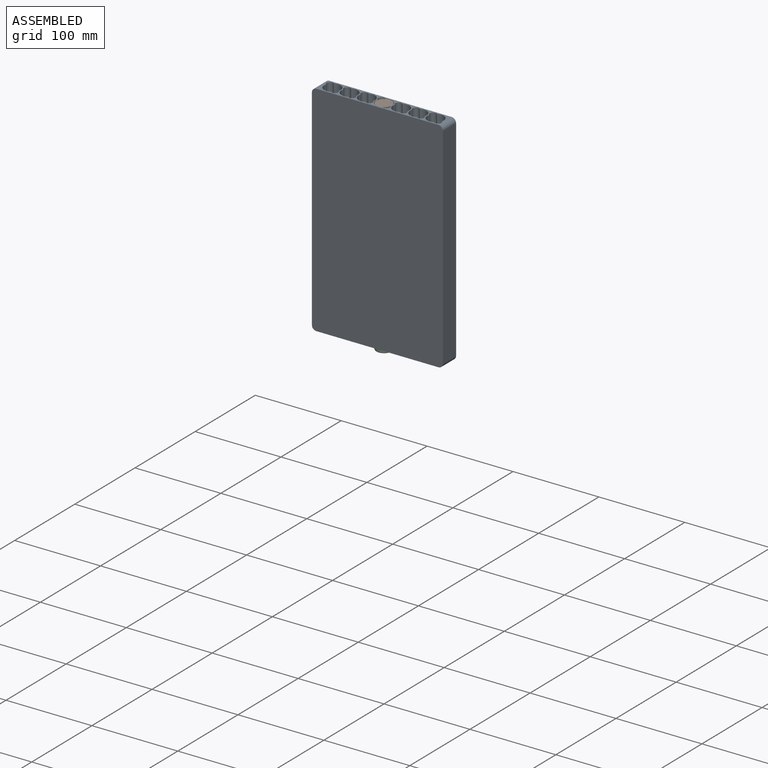
[diagram: assembled view]
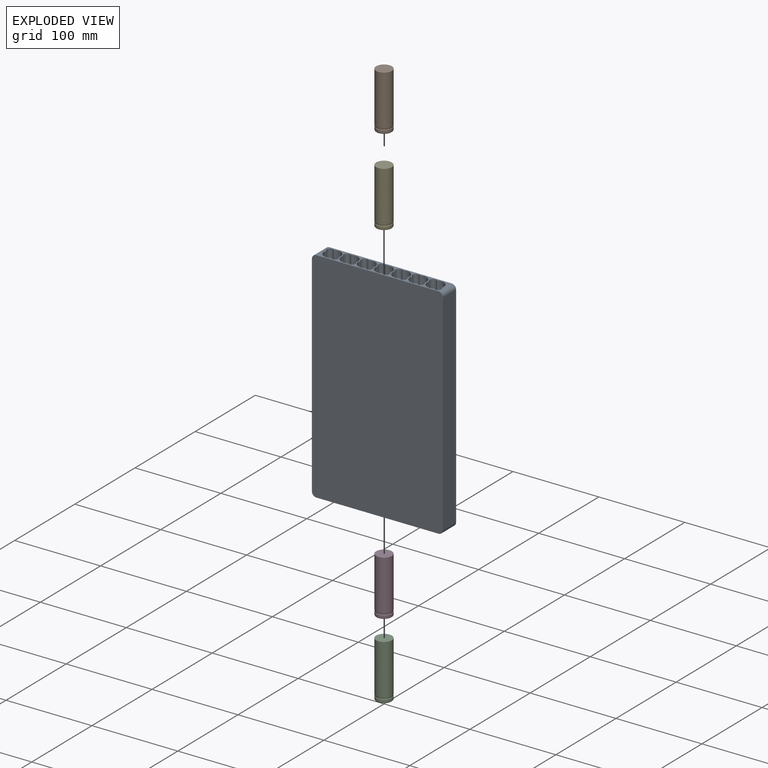
[diagram: exploded view]
GUIDED TOUR — MATED ASSEMBLY (Onshape document 65e185174f13fe396940db51, AutoMate assembly 65e185174f13fe396940db51_8ce6baf0ba9446fbc333db1d_f1229b0c8670d90a0596e12f_default)

This assembly has 5 components, labeled P0..P4 below (a component is one placed occurrence of a part; the same part can appear more than once), held together by 4 mates. A mate is a constraint between two components; its type names the relative motion it leaves free:
  FASTENED — locks the two components together rigidly (no relative motion).
Axis/direction vectors are unit vectors and 'through' points are millimeter coordinates, both in the assembly's world frame.

MATES
  1. FASTENED "Fastened 6": P2 <-> P3, direction (0.000, 0.000, -1.000) through (0.00, 0.00, 60.13) mm
  2. FASTENED "Fastened 1": P1 <-> P4, direction (0.000, 0.000, -1.000) through (0.00, 0.00, 189.98) mm
  3. FASTENED "Fastened 7": P1 <-> P0, direction (0.000, 0.000, 1.000) through (0.00, 0.00, 254.98) mm
  4. FASTENED "Fastened 3": P3 <-> P4, direction (0.000, 0.000, 1.000) through (0.00, 0.00, 124.98) mm

ASSEMBLY ORDER
  1. P4 — the base component [order verified]
  2. P0 [order verified]
  3. P3 [order verified]
  4. P1 [order verified]
  5. P2 [order verified]
Order-tag legend:
  [order verified] — this step's position reverses a verified removal order: the component was checked to insert without passing through the ones already placed.

Of the 5 components, 1 carries the full construction recipe — the FeatureScript program that regenerates the part's solid from scratch; the rest are supplied as boundary geometry only.
Each toured component is shown spotlighted twice — in the assembled view, then in the exploded view, where a leader line traces a displaced component back to its assembled socket (saturated green if recipe-attached, orange if geometry-only; every other component desaturated gray) — followed by its recipe or geometry summary and the mates that hold it.
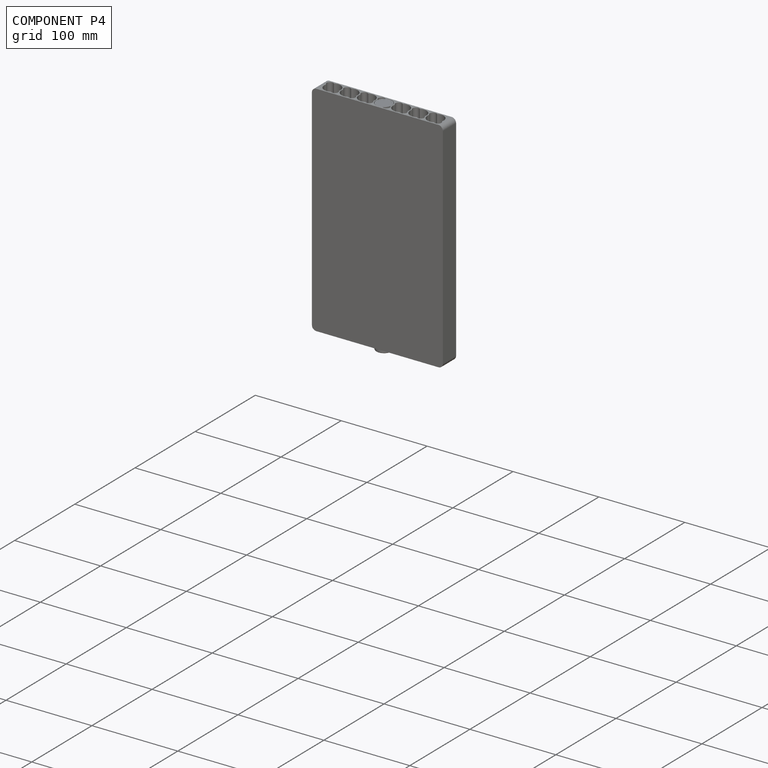
[diagram: component P4 — assembled]
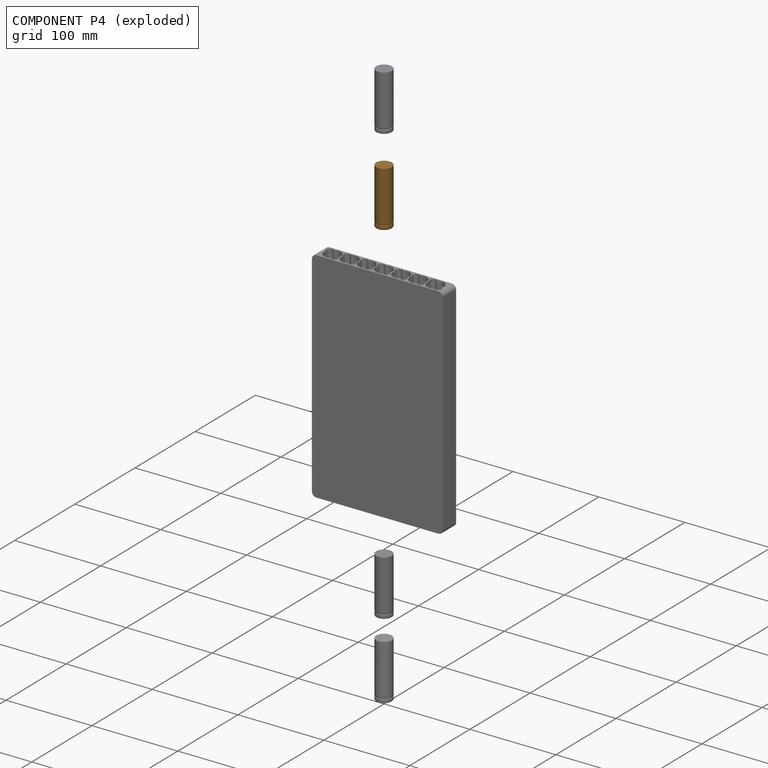
[diagram: component P4 — exploded]
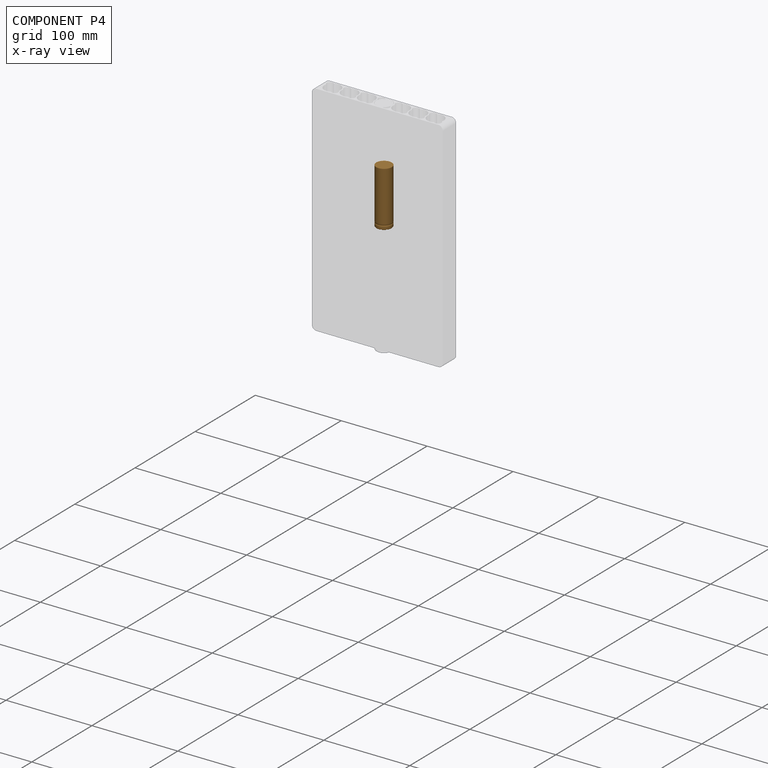
[diagram: component P4 — x-ray view]
COMPONENT P4 — geometry summary (no construction recipe available for this part):
  bounding box: 65.0 x 20.4 x 20.4 mm
  B-rep topology: 1 solid, 15 faces, 52 edges
  volume: 17202 mm^3 (63% of its bounding box)
  symmetry: revolution-symmetric about the x axis through its bounding-box center; mirror-symmetric across its y mid-plane, z mid-plane
Held by: FASTENED mate "Fastened 1" to P1; FASTENED mate "Fastened 3" to P3.
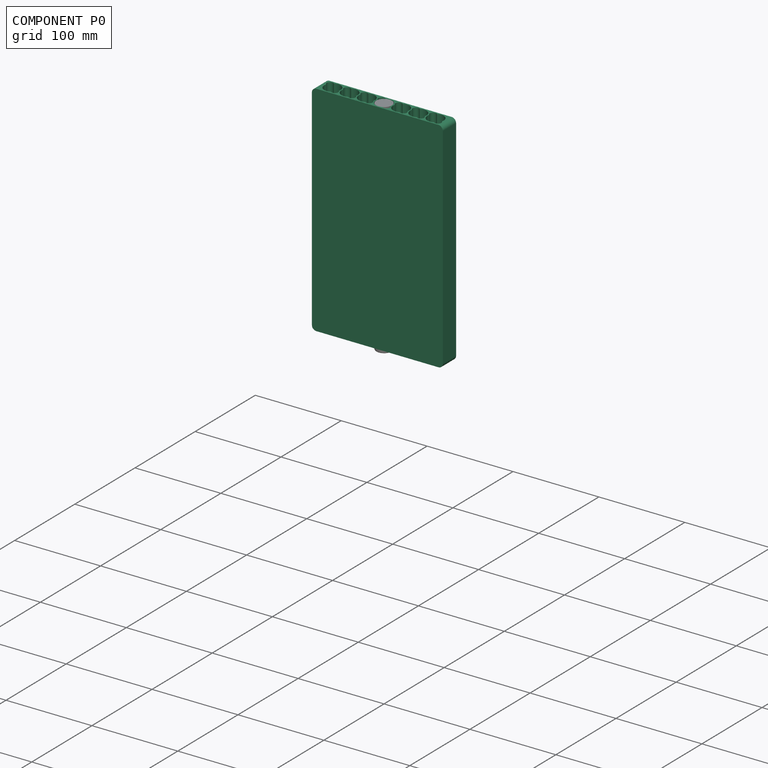
[diagram: component P0 — assembled]
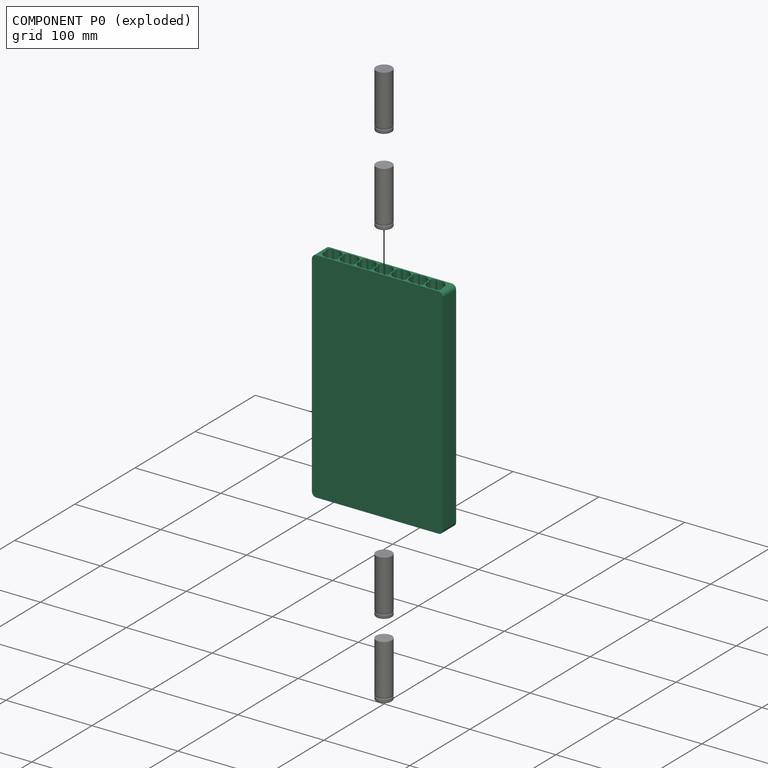
[diagram: component P0 — exploded]
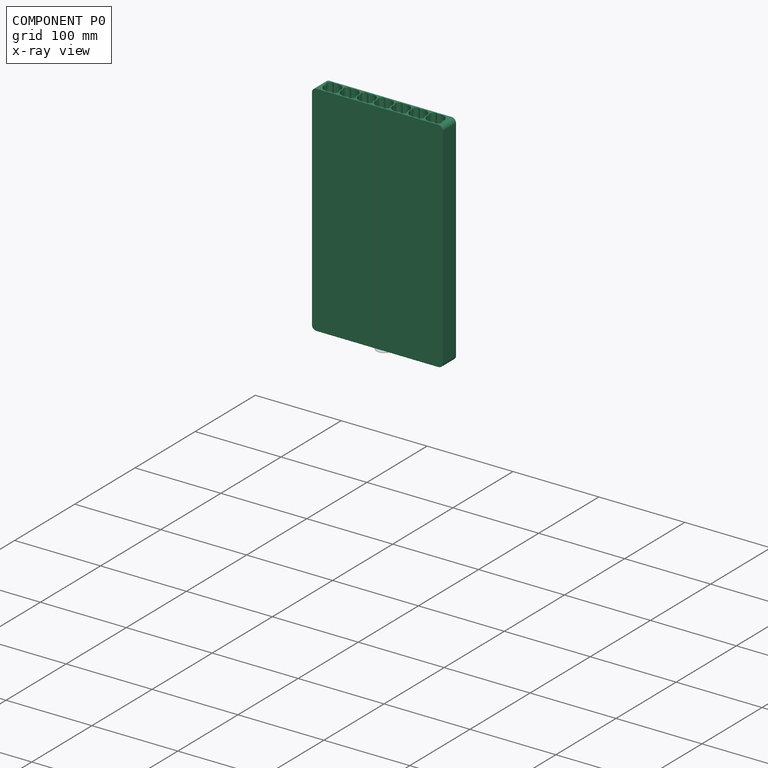
[diagram: component P0 — x-ray view]
COMPONENT P0 — recipe-attached (CADFS 00773955, mesh-verified: the recipe's output STEP matches this component's geometry to below the mesh-comparison resolution (tessellation chordal tolerance ~0.447 mm)).
Held by: FASTENED mate "Fastened 7" to P1.
Construction recipe (FeatureScript — the CAD program that rebuilds this solid; sketch coordinates are in the units given by the * unit suffixes, e.g. mm):

FeatureScript 1511;
import(path : "onshape/std/geometry.fs", version : "1511.0");
import(path : "onshape/std/common.fs", version : "1511.0");
const mm = millimeter;
const VERTEX = EntityType.VERTEX;
const EDGE = EntityType.EDGE;
const FACE = EntityType.FACE;
const BODY = EntityType.BODY;
function v(x, y){return vector(x, y);}
function OD(order){return orderDisambiguation(order);}
function OSD(set){return originalSetDisambiguation(set);}
function TD(topology){return topologyDisambiguation(topology);}
function TDD(query){return trueDependencyDisambiguation(query);}
function sQuery(a, b, c) {return sketchEntityQuery(a, b, c);}

annotation { "Feature Type Name" : "Feature", "Feature Type Description" : "" }
export const myFeature = defineFeature(function(context is Context, id is Id, definition is map)
    precondition{}
    {
        {
            var Q0;
            Q0=qCreatedBy(makeId("Top.planeOp"),FACE);
            var sketch = newSketch(context, id + "F0", { "sketchPlane" : qUnion([Q0])});
            skLineSegment(sketch, "E0.bottom", {"start": v(76.2, 11) * mm, "end": v(-76.2, 11) * mm});
            skLineSegment(sketch, "E0.top", {"start": v(76.2, -11) * mm, "end": v(-76.2, -11) * mm});
            skLineSegment(sketch, "E0.left", {"start": v(76.2, 11) * mm, "end": v(76.2, -11) * mm});
            skLineSegment(sketch, "E0.right", {"start": v(-76.2, 11) * mm, "end": v(-76.2, -11) * mm});
            skPoint(sketch, "E0.middle", {"position": v(0, 0) * mm});
            skArc(sketch, "E1", {"start": v(-9.13, 2.62) * mm, "mid": v(-6.06, -7.32) * mm, "end": v(4.28, -8.48) * mm});
            skPoint(sketch, "E2.start.orphan", {"position": v(0, -9.5) * mm});
            skArc(sketch, "E3", {"start": v(4.28, -8.48) * mm, "mid": v(9.8, -8.12) * mm, "end": v(9.13, -2.62) * mm});
            skArc(sketch, "E4.1.0", {"start": v(-4.28, 8.48) * mm, "mid": v(-9.8, 8.12) * mm, "end": v(-9.13, 2.62) * mm});
            skArc(sketch, "E5.trimOffspring", {"start": v(9.13, -2.62) * mm, "mid": v(6.06, 7.32) * mm, "end": v(-4.28, 8.48) * mm});
            skArc(sketch, "E6.1.0.0", {"start": v(29.13, -2.62) * mm, "mid": v(26.06, 7.32) * mm, "end": v(15.72, 8.48) * mm});
            skArc(sketch, "E6.1.0.1", {"start": v(10.87, 2.62) * mm, "mid": v(13.94, -7.32) * mm, "end": v(24.28, -8.48) * mm});
            skArc(sketch, "E6.1.0.2", {"start": v(15.72, 8.48) * mm, "mid": v(10.2, 8.12) * mm, "end": v(10.87, 2.62) * mm});
            skArc(sketch, "E6.1.0.3", {"start": v(24.28, -8.48) * mm, "mid": v(29.8, -8.12) * mm, "end": v(29.13, -2.62) * mm});
            skArc(sketch, "E6.2.0.0", {"start": v(49.13, -2.62) * mm, "mid": v(46.06, 7.32) * mm, "end": v(35.72, 8.48) * mm});
            skArc(sketch, "E6.2.0.1", {"start": v(30.87, 2.62) * mm, "mid": v(33.94, -7.32) * mm, "end": v(44.28, -8.48) * mm});
            skArc(sketch, "E6.2.0.2", {"start": v(35.72, 8.48) * mm, "mid": v(30.2, 8.12) * mm, "end": v(30.87, 2.62) * mm});
            skArc(sketch, "E6.2.0.3", {"start": v(44.28, -8.48) * mm, "mid": v(49.8, -8.12) * mm, "end": v(49.13, -2.62) * mm});
            skArc(sketch, "E6.3.0.0", {"start": v(69.13, -2.62) * mm, "mid": v(66.06, 7.32) * mm, "end": v(55.72, 8.48) * mm});
            skArc(sketch, "E6.3.0.1", {"start": v(50.87, 2.62) * mm, "mid": v(53.94, -7.32) * mm, "end": v(64.28, -8.48) * mm});
            skArc(sketch, "E6.3.0.2", {"start": v(55.72, 8.48) * mm, "mid": v(50.2, 8.12) * mm, "end": v(50.87, 2.62) * mm});
            skArc(sketch, "E6.3.0.3", {"start": v(64.28, -8.48) * mm, "mid": v(69.8, -8.12) * mm, "end": v(69.13, -2.62) * mm});
            skLineSegment(sketch, "E6.direction1", {"start": v(-9.13, 2.62) * mm, "end": v(10.87, 2.62) * mm, "construction": true});
            skArc(sketch, "E7.1.0.0", {"start": v(-10.87, -2.62) * mm, "mid": v(-13.94, 7.32) * mm, "end": v(-24.28, 8.48) * mm});
            skArc(sketch, "E7.1.0.1", {"start": v(-29.13, 2.62) * mm, "mid": v(-26.06, -7.32) * mm, "end": v(-15.72, -8.48) * mm});
            skArc(sketch, "E7.1.0.2", {"start": v(-24.28, 8.48) * mm, "mid": v(-29.8, 8.12) * mm, "end": v(-29.13, 2.62) * mm});
            skArc(sketch, "E7.1.0.3", {"start": v(-15.72, -8.48) * mm, "mid": v(-10.2, -8.12) * mm, "end": v(-10.87, -2.62) * mm});
            skArc(sketch, "E7.2.0.0", {"start": v(-30.87, -2.62) * mm, "mid": v(-33.94, 7.32) * mm, "end": v(-44.28, 8.48) * mm});
            skArc(sketch, "E7.2.0.1", {"start": v(-49.13, 2.62) * mm, "mid": v(-46.06, -7.32) * mm, "end": v(-35.72, -8.48) * mm});
            skArc(sketch, "E7.2.0.2", {"start": v(-44.28, 8.48) * mm, "mid": v(-49.8, 8.12) * mm, "end": v(-49.13, 2.62) * mm});
            skArc(sketch, "E7.2.0.3", {"start": v(-35.72, -8.48) * mm, "mid": v(-30.2, -8.12) * mm, "end": v(-30.87, -2.62) * mm});
            skArc(sketch, "E7.3.0.0", {"start": v(-50.87, -2.62) * mm, "mid": v(-53.94, 7.32) * mm, "end": v(-64.28, 8.48) * mm});
            skArc(sketch, "E7.3.0.1", {"start": v(-69.13, 2.62) * mm, "mid": v(-66.06, -7.32) * mm, "end": v(-55.72, -8.48) * mm});
            skArc(sketch, "E7.3.0.2", {"start": v(-64.28, 8.48) * mm, "mid": v(-69.8, 8.12) * mm, "end": v(-69.13, 2.62) * mm});
            skArc(sketch, "E7.3.0.3", {"start": v(-55.72, -8.48) * mm, "mid": v(-50.2, -8.12) * mm, "end": v(-50.87, -2.62) * mm});
            skLineSegment(sketch, "E7.direction1", {"start": v(-9.13, 2.62) * mm, "end": v(-29.13, 2.62) * mm, "construction": true});
            skSolve(sketch);
        }
        {
            var Q0;
            Q0 = qSketchRegion(id + "F0", true);
            extrude(context, id + "F1", {"entities" : qUnion([Q0]), "depth" : 254.98 * mm, "offsetDistance" : 25.4 * mm});
        }
        {
            var Q0;
            Q0=makeQuery(id+"F1.opExtrude","CAP_EDGE",EDGE,{"disambiguationData":[OSD([sQuery(id+"F0.wireOp",EDGE,"E0.left")])],"isStart":false});
            var Q1;
            Q1=makeQuery(id+"F1.opExtrude","CAP_EDGE",EDGE,{"disambiguationData":[OSD([sQuery(id+"F0.wireOp",EDGE,"E0.right")])],"isStart":false});
            var Q2;
            Q2=makeQuery(id+"F1.opExtrude","CAP_EDGE",EDGE,{"disambiguationData":[OSD([sQuery(id+"F0.wireOp",EDGE,"E0.left")])],"isStart":true});
            var Q3;
            Q3=makeQuery(id+"F1.opExtrude","CAP_EDGE",EDGE,{"disambiguationData":[OSD([sQuery(id+"F0.wireOp",EDGE,"E0.right")])],"isStart":true});
            fillet(context, id + "F2", {"entities" : qUnion([Q0, Q1, Q2, Q3]), "radius" : 5.08 * mm, "tangentPropagation" : true, "allowEdgeOverflow" : false});
        }
    });
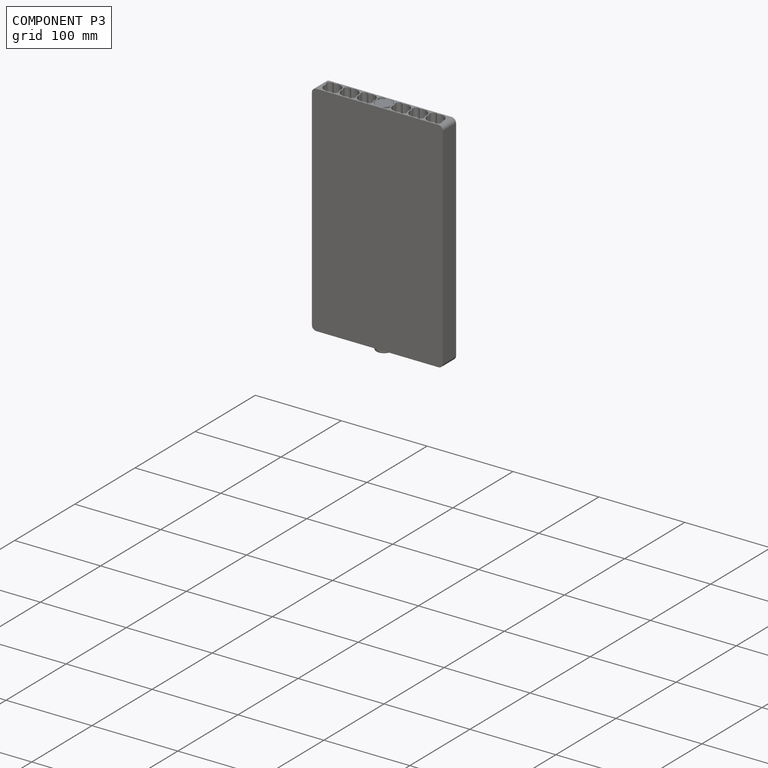
[diagram: component P3 — assembled]
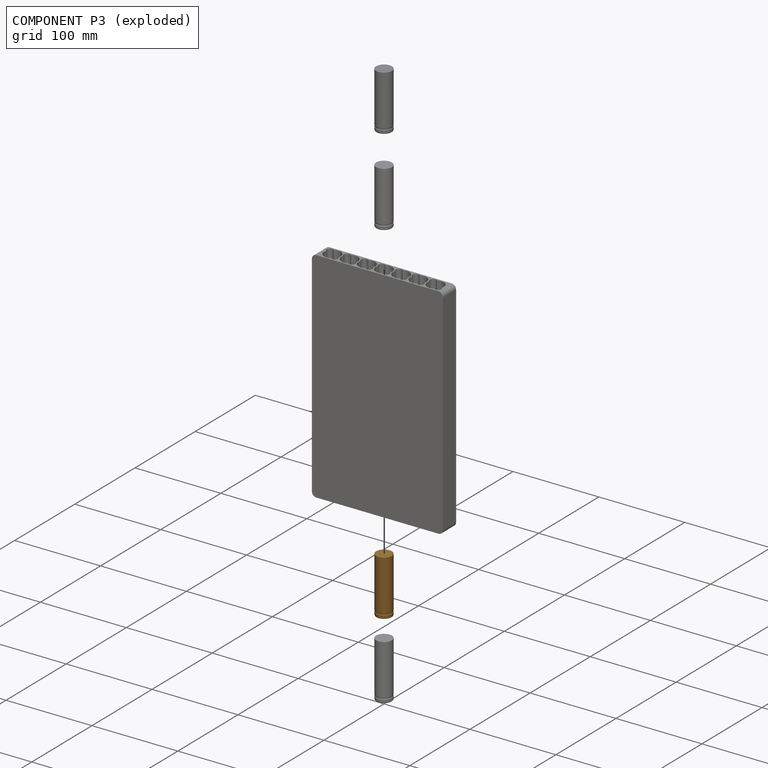
[diagram: component P3 — exploded]
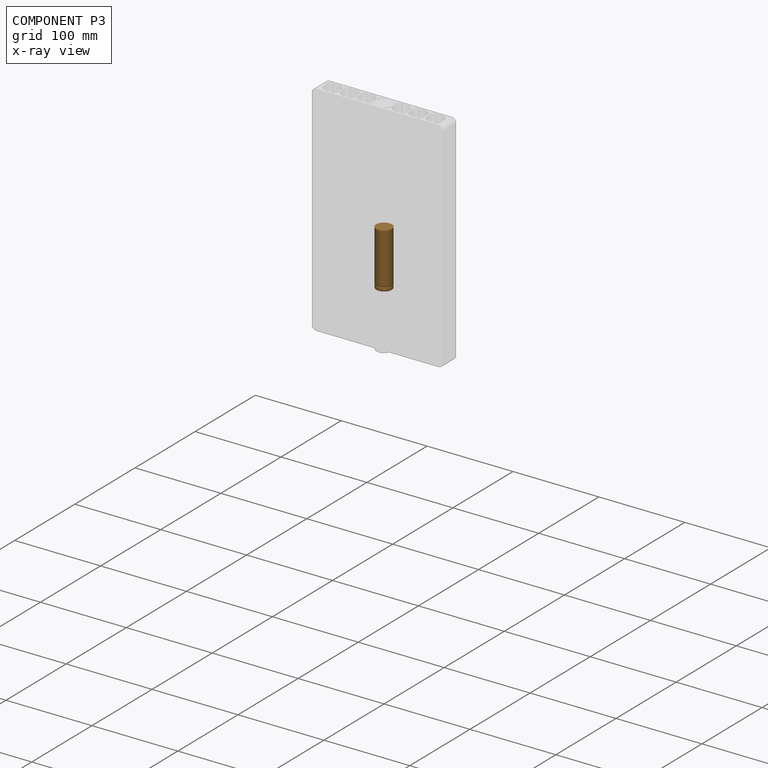
[diagram: component P3 — x-ray view]
COMPONENT P3 — geometry summary (no construction recipe available for this part):
  bounding box: 65.0 x 20.4 x 20.4 mm
  B-rep topology: 1 solid, 15 faces, 52 edges
  volume: 17202 mm^3 (63% of its bounding box)
  symmetry: revolution-symmetric about the x axis through its bounding-box center; mirror-symmetric across its y mid-plane, z mid-plane
Held by: FASTENED mate "Fastened 6" to P2; FASTENED mate "Fastened 3" to P4.
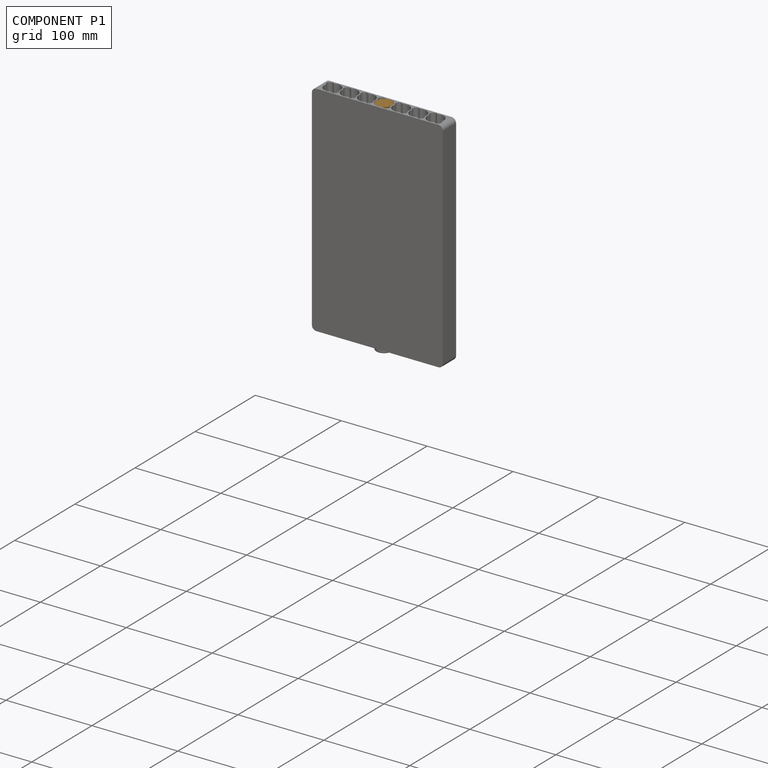
[diagram: component P1 — assembled]
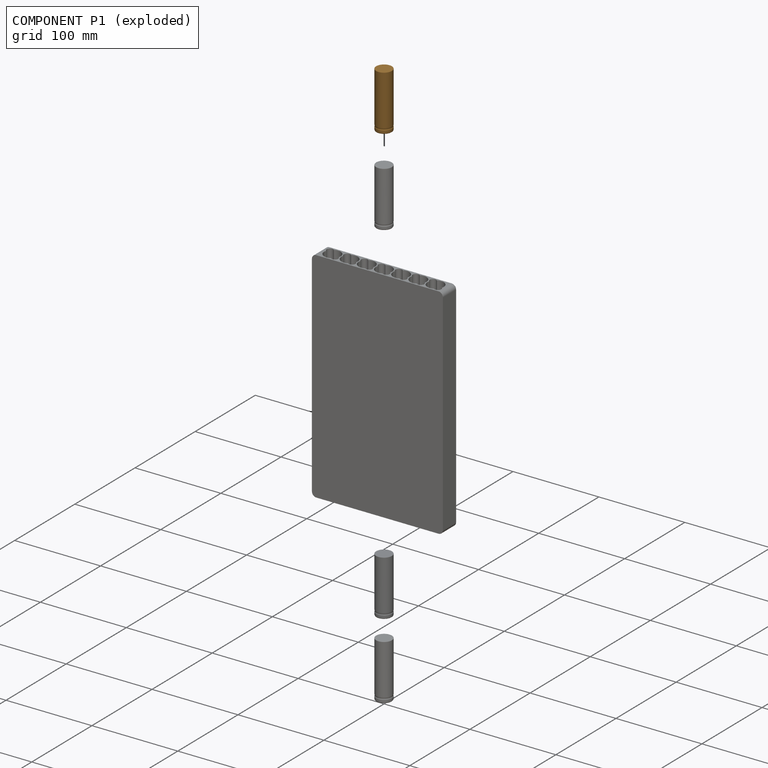
[diagram: component P1 — exploded]
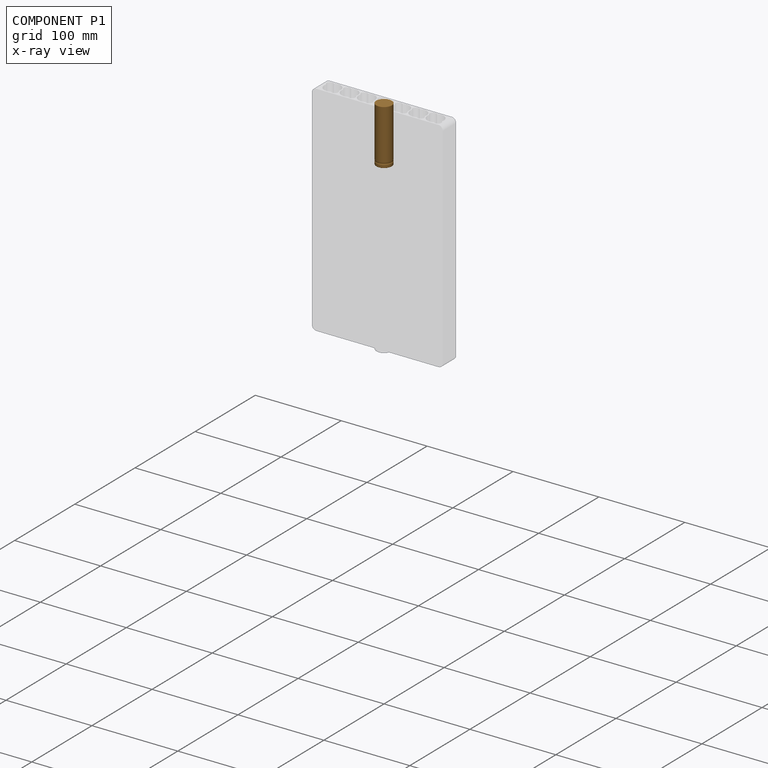
[diagram: component P1 — x-ray view]
COMPONENT P1 — geometry summary (no construction recipe available for this part):
  bounding box: 65.0 x 20.4 x 20.4 mm
  B-rep topology: 1 solid, 15 faces, 52 edges
  volume: 17202 mm^3 (63% of its bounding box)
  symmetry: revolution-symmetric about the x axis through its bounding-box center; mirror-symmetric across its y mid-plane, z mid-plane
Held by: FASTENED mate "Fastened 1" to P4; FASTENED mate "Fastened 7" to P0.
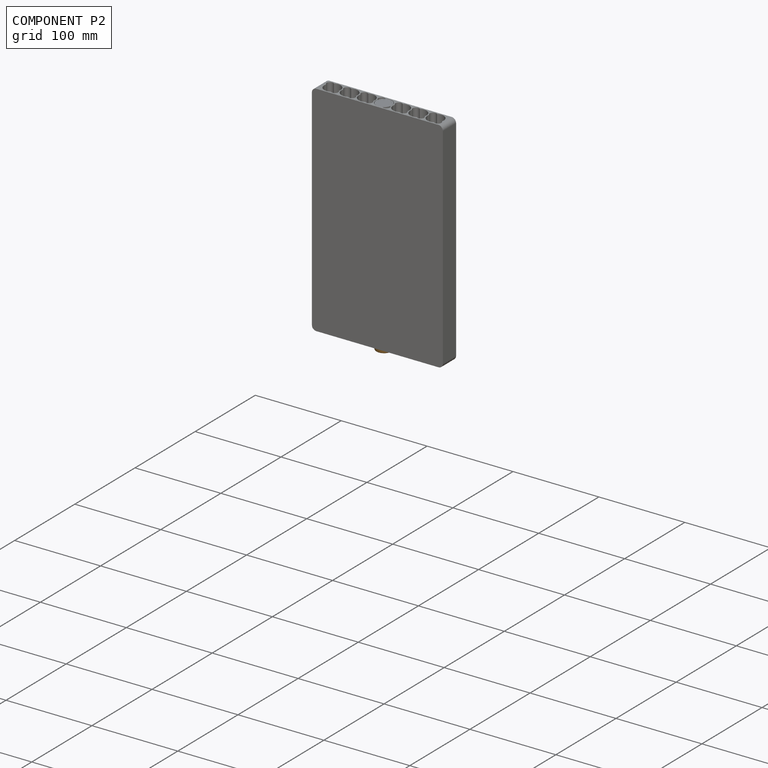
[diagram: component P2 — assembled]
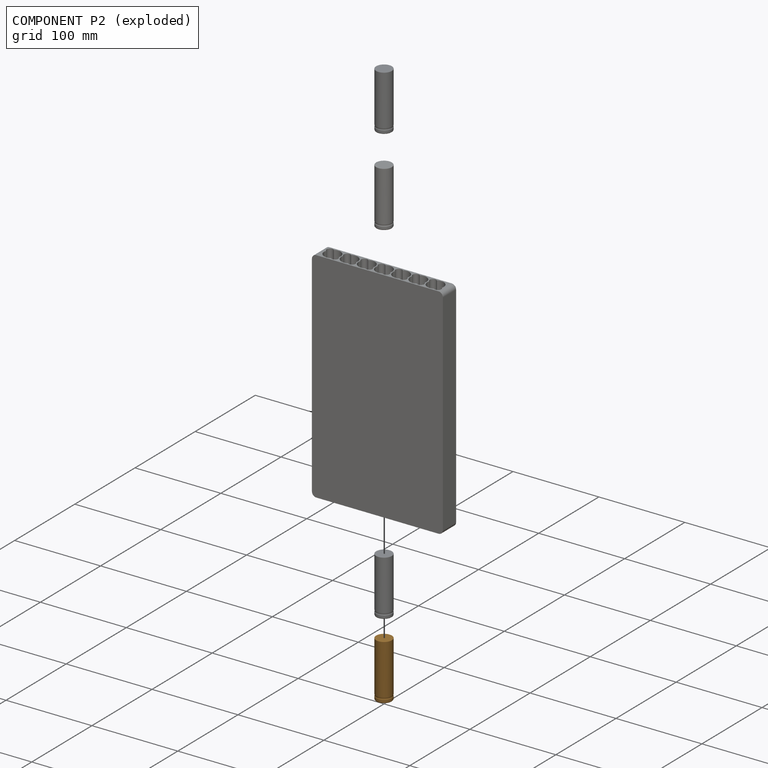
[diagram: component P2 — exploded]
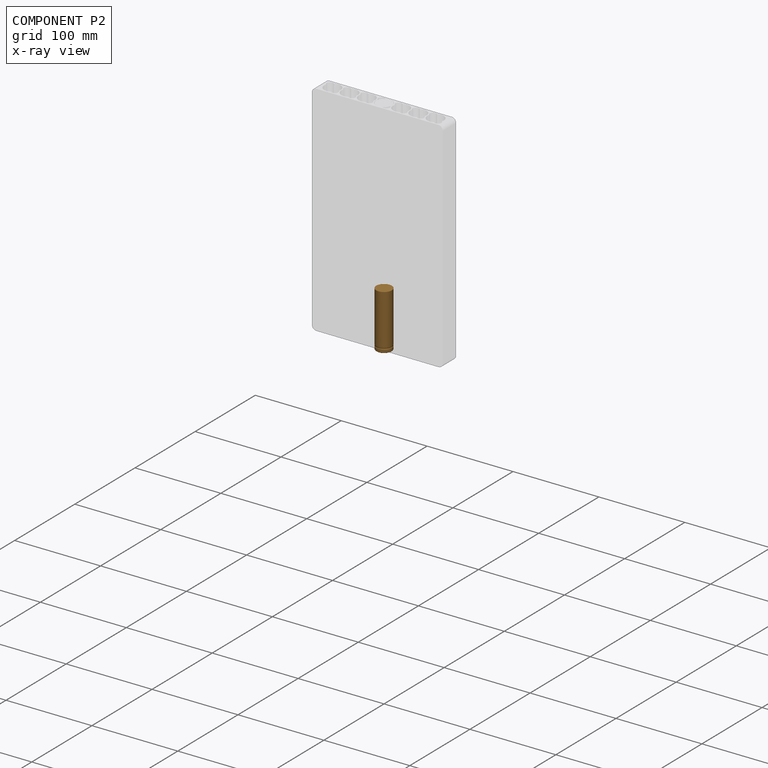
[diagram: component P2 — x-ray view]
COMPONENT P2 — geometry summary (no construction recipe available for this part):
  bounding box: 65.0 x 20.4 x 20.4 mm
  B-rep topology: 1 solid, 15 faces, 52 edges
  volume: 17202 mm^3 (63% of its bounding box)
  symmetry: revolution-symmetric about the x axis through its bounding-box center; mirror-symmetric across its y mid-plane, z mid-plane
Held by: FASTENED mate "Fastened 6" to P3.
PROVENANCE & LICENSES
Assembly (occurrences, transforms, mates, per-part STEP geometry): AutoMate dataset, Zenodo record 7776208, CC0.
Construction recipes: CADFS (HuggingFace VladPyatov/CADFS, CC-BY-4.0, layered over the ABC dataset), FeatureScript reconstruction programs keyed by ABC model id.
Join: ABC meta listings map ABC model id -> Onshape documentId; within a shared document, parts are matched by geometric signature (bounding-box dims + volume at 0.1% relative tolerance, exact B-rep face/solid counts).
Verification: 1 of this assembly's 5 components carries a recipe attachment, and every attachment is mesh-verified: the CADFS STEP and the AutoMate member STEP were compared as meshes in their shared local frame (symmetric sampled-point-to-mesh distance); worst across the 1 attachment: below the mesh-comparison resolution (tessellation chordal tolerance ~0.447 mm) on a 298 mm part.
Renders: orthographic iso camera (az 35 / el 25); the floor grid conveys scale (grid pitch printed in each image; no ruler). In the exploded view each component is displaced by its stored offset vector: the offsets alone carry the explosion direction (mate normal/axis signs are not orientation cues and do not encode it), and separation distances are assigned per mate-chain, not proportionally to assembly-order depth.
